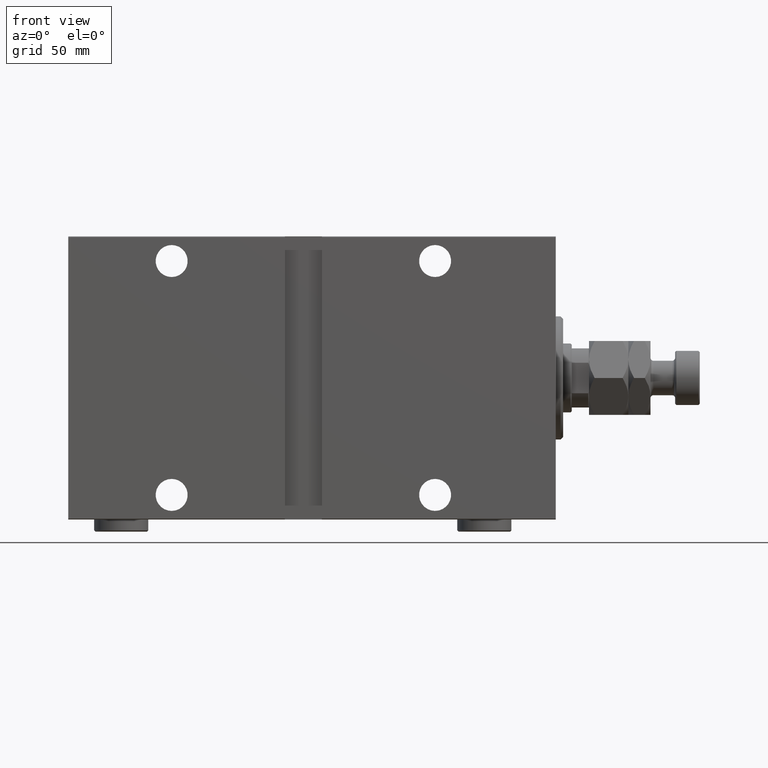
[diagram: clean part render]
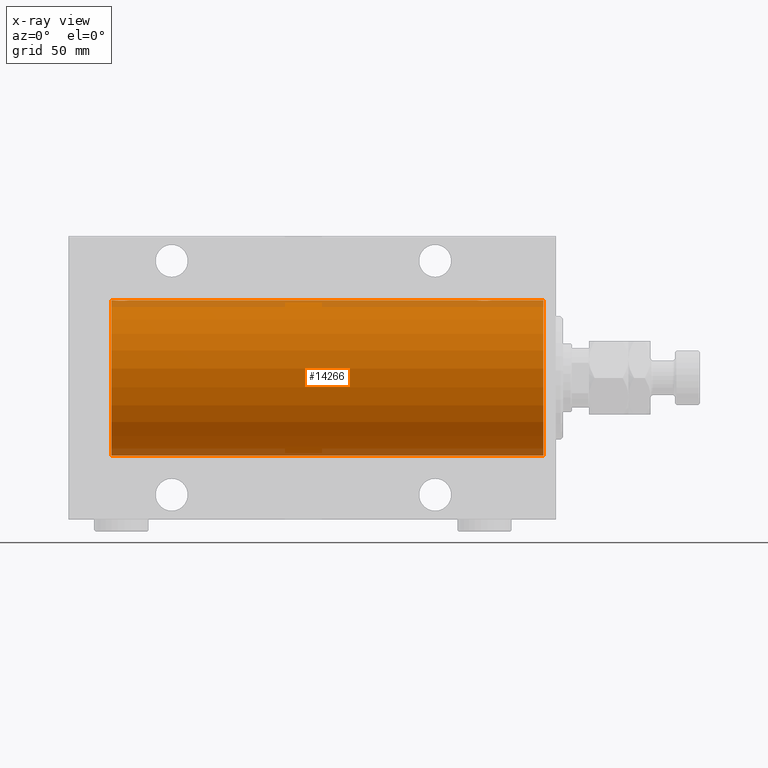
[diagram: x-ray — body ghosted, one internal face saturated and labeled with its STEP entity id]
A machine part, front view, then the same camera in x-ray: the body is ghosted and one INTERNAL B-rep face — a face not visible from any outside direction — is saturated and labeled: STEP entity #14266.
In plain terms, the highlighted cylindrical surface (partial cylindrical patch) has radius 31.5 mm, axis along (1, 0, -0).
Its self-contained STEP definition (entity closure, byte-faithful):
#63 = CARTESIAN_POINT ( 'NONE',  ( 28.03447219557935099, 2.847177118681570640, 31.37115363072576102 ) ) ;
#282 = CARTESIAN_POINT ( 'NONE',  ( 25.99999999999999289, 0.1958503357044804327, 31.49999999999999289 ) ) ;
#1664 = CARTESIAN_POINT ( 'NONE',  ( 176.6968804603334888, 2.999928894260084355, 31.35682424344752306 ) ) ;
#2361 = CARTESIAN_POINT ( 'NONE',  ( 174.9955765329607971, 2.602863964129806806, 31.39246667950591174 ) ) ;
#2616 = AXIS2_PLACEMENT_3D ( 'NONE', #11338, #15297, #39979 ) ;
#2699 = VECTOR ( 'NONE', #17644, 1000.000000000000000 ) ;
#3128 = B_SPLINE_CURVE_WITH_KNOTS ( 'NONE', 3,
 ( #40544, #9339, #44037, #20048, #37739, #44506, #44262, #30542, #34031, #34259, #36825, #12141, #5623, #27048, #8660, #16109, #1664, #33576, #44733, #12619, #12372, #30313, #2361, #26829, #40315, #26595, #22862, #37060, #8422, #5389, #15653, #4934, #19139, #33345 ),
 .UNSPECIFIED., .F., .F.,
 ( 4, 2, 2, 2, 2, 2, 2, 2, 2, 2, 2, 2, 2, 2, 2, 2, 4 ),
 ( 1.333075448663209391E-18, 0.0005865426616959157347, 0.001173085323391829951, 0.001759627985087744168, 0.002346170646783658168, 0.002932713308479572168, 0.003519255970175486602, 0.004105798631871400602, 0.004692341293567314602, 0.005278883955263228601, 0.005865426616959142601, 0.006451969278655058336, 0.007038511940350972336, 0.007625054602046886336, 0.008211597263742801203, 0.008798139925438715203, 0.009384682587134629203 ),
 .UNSPECIFIED. ) ;
#3428 = LINE ( 'NONE', #38586, #2699 ) ;
#4133 = CARTESIAN_POINT ( 'NONE',  ( 180.5000000000000000, 0.000000000000000000, 31.50000000000000000 ) ) ;
#4245 = CARTESIAN_POINT ( 'NONE',  ( 26.00000000000000355, -2.117263226567934635E-23, 31.50000000000000000 ) ) ;
#4934 = CARTESIAN_POINT ( 'NONE',  ( 173.5196296453370621, 0.3947854228308168012, 31.49811339059597870 ) ) ;
#4953 = ORIENTED_EDGE ( 'NONE', *, *, #9090, .T. ) ;
#5198 = EDGE_CURVE ( 'NONE', #24087, #30328, #36381, .T. ) ;
#5389 = CARTESIAN_POINT ( 'NONE',  ( 173.6531399839437313, 0.9664718879465875601, 31.48569500832682522 ) ) ;
#5623 = CARTESIAN_POINT ( 'NONE',  ( 177.8291560116500136, 2.696575640577638655, 31.38445666459465500 ) ) ;
#6127 = CARTESIAN_POINT ( 'NONE',  ( 31.25924903376736097, 1.983444873066706693, 31.43779820687993976 ) ) ;
#6729 = DIRECTION ( 'NONE',  ( 0.000000000000000000, 0.000000000000000000, 1.000000000000000000 ) ) ;
#6917 = LINE ( 'NONE', #31374, #22734 ) ;
#7266 = CARTESIAN_POINT ( 'NONE',  ( 180.5000000000000000, 0.000000000000000000, 31.50000000000000000 ) ) ;
#7289 = CARTESIAN_POINT ( 'NONE',  ( 29.39162658774828429, 2.980875975682578893, 31.35866508162785138 ) ) ;
#8422 = CARTESIAN_POINT ( 'NONE',  ( 173.8036818622371982, 1.329867798385255595, 31.47244047903475916 ) ) ;
#8660 = CARTESIAN_POINT ( 'NONE',  ( 177.2789700859314337, 2.903824817694219185, 31.36589387714387556 ) ) ;
#9029 = ORIENTED_EDGE ( 'NONE', *, *, #39913, .T. ) ;
#9090 = EDGE_CURVE ( 'NONE', #15502, #23394, #29409, .T. ) ;
#9339 = CARTESIAN_POINT ( 'NONE',  ( 179.5000000000000284, 0.1983379036618946878, 31.50000000000000000 ) ) ;
#9394 = CARTESIAN_POINT ( 'NONE',  ( 31.84649213527308120, 0.9675486622706099826, 31.48566161620712478 ) ) ;
#9625 = CARTESIAN_POINT ( 'NONE',  ( 31.38591626639475862, 1.829162098167812278, 31.44727042639135917 ) ) ;
#10792 = VERTEX_POINT ( 'NONE', #38212 ) ;
#11224 = CARTESIAN_POINT ( 'NONE',  ( 29.77897008593145856, 2.903824817694222737, 31.36589387714388266 ) ) ;
#11338 = CARTESIAN_POINT ( 'NONE',  ( 5.000000000000004441, 0.000000000000000000, 0.000000000000000000 ) ) ;
#12141 = CARTESIAN_POINT ( 'NONE',  ( 178.0036313484457651, 2.603460270751678074, 31.39242096616743538 ) ) ;
#12372 = CARTESIAN_POINT ( 'NONE',  ( 175.5344721955793261, 2.847177118681567087, 31.37115363072576102 ) ) ;
#12619 = CARTESIAN_POINT ( 'NONE',  ( 175.7215416052334263, 2.903876953428260244, 31.36588880666518619 ) ) ;
#12890 = CARTESIAN_POINT ( 'NONE',  ( 31.99999999999999289, 0.1983379036618941882, 31.50000000000000000 ) ) ;
#13016 = CYLINDRICAL_SURFACE ( 'NONE', #14718, 31.50000000000000000 ) ;
#13255 = FACE_OUTER_BOUND ( 'NONE', #31078, .T. ) ;
#14266 = ADVANCED_FACE ( 'NONE', ( #13255 ), #13016, .F. ) ;
#14718 = AXIS2_PLACEMENT_3D ( 'NONE', #34210, #27463, #6729 ) ;
#15130 = AXIS2_PLACEMENT_3D ( 'NONE', #16807, #27522, #37290 ) ;
#15297 = DIRECTION ( 'NONE',  ( -1.000000000000000000, 0.000000000000000000, 0.000000000000000000 ) ) ;
#15502 = VERTEX_POINT ( 'NONE', #38063 ) ;
#15653 = CARTESIAN_POINT ( 'NONE',  ( 173.5963926212991169, 0.7794402936641280366, 31.49094275383854225 ) ) ;
#15915 = CARTESIAN_POINT ( 'NONE',  ( 179.5000000000000000, -1.371858964305622898E-15, 31.50000000000000000 ) ) ;
#16109 = CARTESIAN_POINT ( 'NONE',  ( 176.8916265877482488, 2.980875975682576673, 31.35866508162786559 ) ) ;
#16807 = CARTESIAN_POINT ( 'NONE',  ( 180.5000000000000000, 0.000000000000000000, 0.000000000000000000 ) ) ;
#17538 = CARTESIAN_POINT ( 'NONE',  ( 30.83158836027363137, 2.384155341399013306, 31.40983767558391193 ) ) ;
#17644 = DIRECTION ( 'NONE',  ( -1.000000000000000000, -0.000000000000000000, -0.000000000000000000 ) ) ;
#17767 = CARTESIAN_POINT ( 'NONE',  ( 28.80529250725175316, 3.000070712257523642, 31.35681067529873189 ) ) ;
#18453 = CARTESIAN_POINT ( 'NONE',  ( 27.01911300874993316, 2.261707786034448109, 31.41901301017587755 ) ) ;
#19139 = CARTESIAN_POINT ( 'NONE',  ( 173.5000000000000284, 0.1958503357044814874, 31.50000000000000711 ) ) ;
#20048 = CARTESIAN_POINT ( 'NONE',  ( 179.4042380662973812, 0.7769457993854284039, 31.49100119919084761 ) ) ;
#20392 = EDGE_CURVE ( 'NONE', #30328, #15502, #28368, .T. ) ;
#21109 = DIRECTION ( 'NONE',  ( -1.000000000000000000, -0.000000000000000000, -0.000000000000000000 ) ) ;
#21247 = CARTESIAN_POINT ( 'NONE',  ( 30.32915601165002784, 2.696575640577640431, 31.38445666459464789 ) ) ;
#21480 = CARTESIAN_POINT ( 'NONE',  ( 28.22154160523339428, 2.903876953428261576, 31.36588880666517909 ) ) ;
#21933 = CARTESIAN_POINT ( 'NONE',  ( 26.61488042651788177, 1.830131931565274428, 31.44721086712685931 ) ) ;
#22023 = ORIENTED_EDGE ( 'NONE', *, *, #5198, .T. ) ;
#22734 = VECTOR ( 'NONE', #21109, 1000.000000000000000 ) ;
#22862 = CARTESIAN_POINT ( 'NONE',  ( 174.1148804265178853, 1.830131931565267323, 31.44721086712685931 ) ) ;
#23394 = VERTEX_POINT ( 'NONE', #30688 ) ;
#23606 = CARTESIAN_POINT ( 'NONE',  ( 31.69583971800497224, 1.330832861354128482, 31.47239936387596870 ) ) ;
#24087 = VERTEX_POINT ( 'NONE', #43074 ) ;
#24217 = ORIENTED_EDGE ( 'NONE', *, *, #20392, .T. ) ;
#24525 = CARTESIAN_POINT ( 'NONE',  ( 26.15313998394373840, 0.9664718879465863388, 31.48569500832681811 ) ) ;
#25213 = CARTESIAN_POINT ( 'NONE',  ( 27.67111044284134991, 2.696796994793628333, 31.38443855856934306 ) ) ;
#25570 = CARTESIAN_POINT ( 'NONE',  ( 180.5000000000000000, 0.000000000000000000, 31.50000000000000000 ) ) ;
#26595 = CARTESIAN_POINT ( 'NONE',  ( 174.2389408254605883, 1.981627308739901894, 31.43792063499535061 ) ) ;
#26618 = ORIENTED_EDGE ( 'NONE', *, *, #30374, .F. ) ;
#26829 = CARTESIAN_POINT ( 'NONE',  ( 174.6706141453286705, 2.385694485610531324, 31.40971707706042437 ) ) ;
#26849 = ORIENTED_EDGE ( 'NONE', *, *, #40887, .F. ) ;
#27048 = CARTESIAN_POINT ( 'NONE',  ( 177.4681616584070980, 2.846197268611671216, 31.37124163027859325 ) ) ;
#27099 = CARTESIAN_POINT ( 'NONE',  ( 31.98052481897509125, 0.3933386891556651110, 31.49812829325316343 ) ) ;
#27335 = CARTESIAN_POINT ( 'NONE',  ( 31.60366586440800063, 1.503114925126254331, 31.46454030768326149 ) ) ;
#27463 = DIRECTION ( 'NONE',  ( -1.000000000000000000, -0.000000000000000000, -0.000000000000000000 ) ) ;
#27522 = DIRECTION ( 'NONE',  ( -1.000000000000000000, 0.000000000000000000, 0.000000000000000000 ) ) ;
#28368 = LINE ( 'NONE', #4133, #37799 ) ;
#28475 = CARTESIAN_POINT ( 'NONE',  ( 26.39764130386935648, 1.505293155307497077, 31.46443304312125733 ) ) ;
#28704 = CARTESIAN_POINT ( 'NONE',  ( 29.19688046033348527, 2.999928894260087908, 31.35682424344752306 ) ) ;
#29409 = CIRCLE ( 'NONE', #2616, 31.50000000000000000 ) ;
#30313 = CARTESIAN_POINT ( 'NONE',  ( 175.1711104428413250, 2.696796994793625224, 31.38443855856935016 ) ) ;
#30328 = VERTEX_POINT ( 'NONE', #38204 ) ;
#30374 = EDGE_CURVE ( 'NONE', #37192, #41785, #35965, .T. ) ;
#30542 = CARTESIAN_POINT ( 'NONE',  ( 178.8859162663947302, 1.829162098167811390, 31.44727042639135917 ) ) ;
#30688 = CARTESIAN_POINT ( 'NONE',  ( 5.000000000000004441, 3.857637417314162689E-15, -31.50000000000000000 ) ) ;
#31078 = EDGE_LOOP ( 'NONE', ( #26849, #26618, #9029, #34113, #40638, #22023, #24217, #4953 ) ) ;
#31374 = CARTESIAN_POINT ( 'NONE',  ( 180.5000000000000000, 0.000000000000000000, 31.50000000000000000 ) ) ;
#31838 = VERTEX_POINT ( 'NONE', #15915 ) ;
#31977 = CARTESIAN_POINT ( 'NONE',  ( 28.60640401948892730, 2.980533683278872914, 31.35869737338551388 ) ) ;
#33345 = CARTESIAN_POINT ( 'NONE',  ( 173.5000000000000000, -2.118130973563677748E-23, 31.50000000000000000 ) ) ;
#33576 = CARTESIAN_POINT ( 'NONE',  ( 176.3052925072518065, 3.000070712257521865, 31.35681067529873900 ) ) ;
#34031 = CARTESIAN_POINT ( 'NONE',  ( 178.7592490337673325, 1.983444873066694925, 31.43779820687993976 ) ) ;
#34113 = ORIENTED_EDGE ( 'NONE', *, *, #41673, .T. ) ;
#34210 = CARTESIAN_POINT ( 'NONE',  ( 180.5000000000000000, 0.000000000000000000, 0.000000000000000000 ) ) ;
#34259 = CARTESIAN_POINT ( 'NONE',  ( 178.4825741177319287, 2.260013192167858342, 31.41912713670170376 ) ) ;
#35450 = CARTESIAN_POINT ( 'NONE',  ( 27.17061414532871666, 2.385694485610525994, 31.40971707706043858 ) ) ;
#35682 = CARTESIAN_POINT ( 'NONE',  ( 26.30368186223716975, 1.329867798385254485, 31.47244047903475916 ) ) ;
#35903 = CARTESIAN_POINT ( 'NONE',  ( 26.09639262129909909, 0.7794402936641311452, 31.49094275383852093 ) ) ;
#35965 = CIRCLE ( 'NONE', #15130, 31.50000000000000000 ) ;
#36137 = CARTESIAN_POINT ( 'NONE',  ( 30.98257411773192516, 2.260013192167870777, 31.41912713670168955 ) ) ;
#36381 = B_SPLINE_CURVE_WITH_KNOTS ( 'NONE', 3,
 ( #44784, #12890, #27099, #38017, #9394, #23606, #27335, #9625, #6127, #36137, #17538, #43131, #21247, #45941, #11224, #7289, #28704, #17767, #31977, #21480, #63, #25213, #39397, #35450, #18453, #38933, #21933, #28475, #35682, #24525, #35903, #42672, #282, #4245 ),
 .UNSPECIFIED., .F., .F.,
 ( 4, 2, 2, 2, 2, 2, 2, 2, 2, 2, 2, 2, 2, 2, 2, 2, 4 ),
 ( 1.360165123913867159E-18, 0.0005865426616959161683, 0.001173085323391830819, 0.001759627985087745686, 0.002346170646783660337, 0.002932713308479575204, 0.003519255970175490071, 0.004105798631871404938, 0.004692341293567319806, 0.005278883955263234673, 0.005865426616959149540, 0.006451969278655063540, 0.007038511940350979275, 0.007625054602046894142, 0.008211597263742808142, 0.008798139925438722142, 0.009384682587134636142 ),
 .UNSPECIFIED. ) ;
#36825 = CARTESIAN_POINT ( 'NONE',  ( 178.3315883602736278, 2.384155341399003092, 31.40983767558391193 ) ) ;
#37060 = CARTESIAN_POINT ( 'NONE',  ( 173.8976413038693067, 1.505293155307490194, 31.46443304312125022 ) ) ;
#37192 = VERTEX_POINT ( 'NONE', #25570 ) ;
#37290 = DIRECTION ( 'NONE',  ( 0.000000000000000000, 0.000000000000000000, 1.000000000000000000 ) ) ;
#37739 = CARTESIAN_POINT ( 'NONE',  ( 179.3464921352730244, 0.9675486622706183093, 31.48566161620711767 ) ) ;
#37799 = VECTOR ( 'NONE', #43021, 1000.000000000000000 ) ;
#38017 = CARTESIAN_POINT ( 'NONE',  ( 31.90423806629733861, 0.7769457993854302913, 31.49100119919085472 ) ) ;
#38063 = CARTESIAN_POINT ( 'NONE',  ( 5.000000000000004441, 0.000000000000000000, 31.50000000000000000 ) ) ;
#38204 = CARTESIAN_POINT ( 'NONE',  ( 26.00000000000000355, -2.117263226567934635E-23, 31.50000000000000000 ) ) ;
#38212 = CARTESIAN_POINT ( 'NONE',  ( 173.5000000000000000, -2.118130973563677748E-23, 31.50000000000000000 ) ) ;
#38586 = CARTESIAN_POINT ( 'NONE',  ( 180.5000000000000000, 3.857637417314162689E-15, -31.50000000000000000 ) ) ;
#38933 = CARTESIAN_POINT ( 'NONE',  ( 26.73894082546058826, 1.981627308739901450, 31.43792063499535061 ) ) ;
#39397 = CARTESIAN_POINT ( 'NONE',  ( 27.49557653296075799, 2.602863964129802365, 31.39246667950590464 ) ) ;
#39509 = EDGE_CURVE ( 'NONE', #10792, #24087, #42194, .T. ) ;
#39913 = EDGE_CURVE ( 'NONE', #37192, #31838, #6917, .T. ) ;
#39979 = DIRECTION ( 'NONE',  ( 0.000000000000000000, 0.000000000000000000, 1.000000000000000000 ) ) ;
#40315 = CARTESIAN_POINT ( 'NONE',  ( 174.5191130087498834, 2.261707786034447221, 31.41901301017587755 ) ) ;
#40544 = CARTESIAN_POINT ( 'NONE',  ( 179.5000000000000000, -1.371858964305622898E-15, 31.50000000000000000 ) ) ;
#40638 = ORIENTED_EDGE ( 'NONE', *, *, #39509, .T. ) ;
#40887 = EDGE_CURVE ( 'NONE', #41785, #23394, #3428, .T. ) ;
#41673 = EDGE_CURVE ( 'NONE', #31838, #10792, #3128, .T. ) ;
#41785 = VERTEX_POINT ( 'NONE', #44956 ) ;
#42194 = LINE ( 'NONE', #7266, #45034 ) ;
#42672 = CARTESIAN_POINT ( 'NONE',  ( 26.01962964533703371, 0.3947854228308212976, 31.49811339059598581 ) ) ;
#43021 = DIRECTION ( 'NONE',  ( -1.000000000000000000, -0.000000000000000000, -0.000000000000000000 ) ) ;
#43074 = CARTESIAN_POINT ( 'NONE',  ( 32.00000000000000000, -2.212280765433387153E-16, 31.50000000000000000 ) ) ;
#43131 = CARTESIAN_POINT ( 'NONE',  ( 30.50363134844576862, 2.603460270751688732, 31.39242096616744249 ) ) ;
#44037 = CARTESIAN_POINT ( 'NONE',  ( 179.4805248189750841, 0.3933386891556638898, 31.49812829325316343 ) ) ;
#44262 = CARTESIAN_POINT ( 'NONE',  ( 179.1036658644080148, 1.503114925126255219, 31.46454030768326149 ) ) ;
#44506 = CARTESIAN_POINT ( 'NONE',  ( 179.1958397180049190, 1.330832861354134478, 31.47239936387596160 ) ) ;
#44733 = CARTESIAN_POINT ( 'NONE',  ( 176.1064040194889344, 2.980533683278871582, 31.35869737338552099 ) ) ;
#44784 = CARTESIAN_POINT ( 'NONE',  ( 32.00000000000000000, -2.212280765433387153E-16, 31.50000000000000000 ) ) ;
#44956 = CARTESIAN_POINT ( 'NONE',  ( 180.5000000000000000, 3.857637417314162689E-15, -31.50000000000000000 ) ) ;
#45034 = VECTOR ( 'NONE', #45917, 1000.000000000000000 ) ;
#45917 = DIRECTION ( 'NONE',  ( -1.000000000000000000, -0.000000000000000000, -0.000000000000000000 ) ) ;
#45941 = CARTESIAN_POINT ( 'NONE',  ( 29.96816165840708734, 2.846197268611674769, 31.37124163027858614 ) ) ;